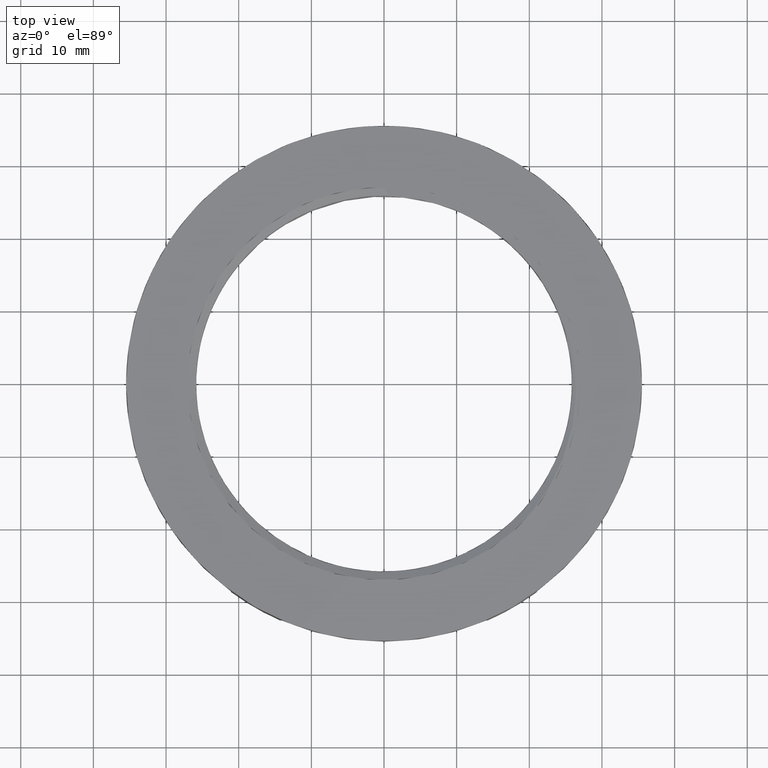
[diagram: clean part render]
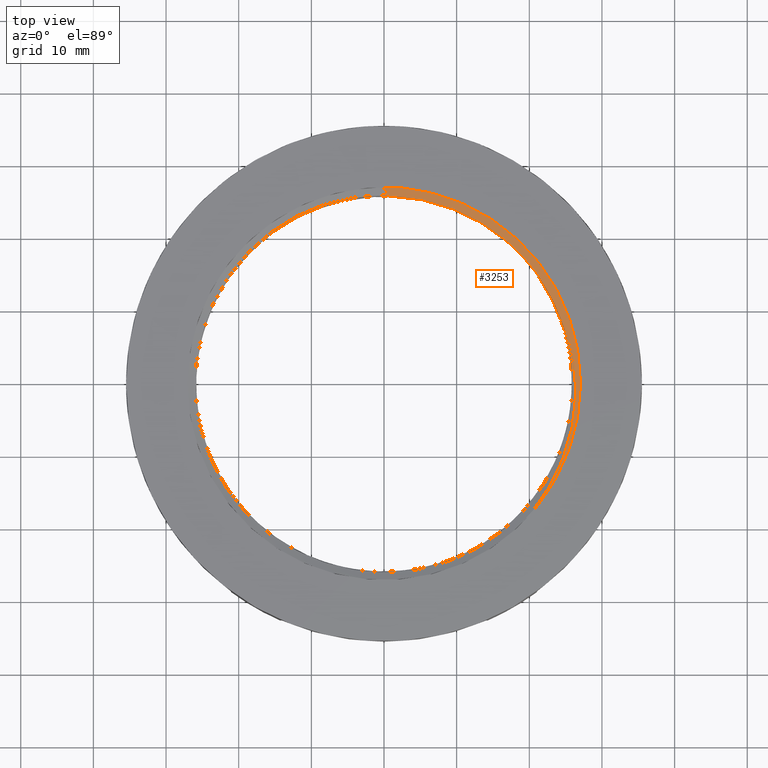
[diagram: same view with one face highlighted and labeled with its STEP entity id]
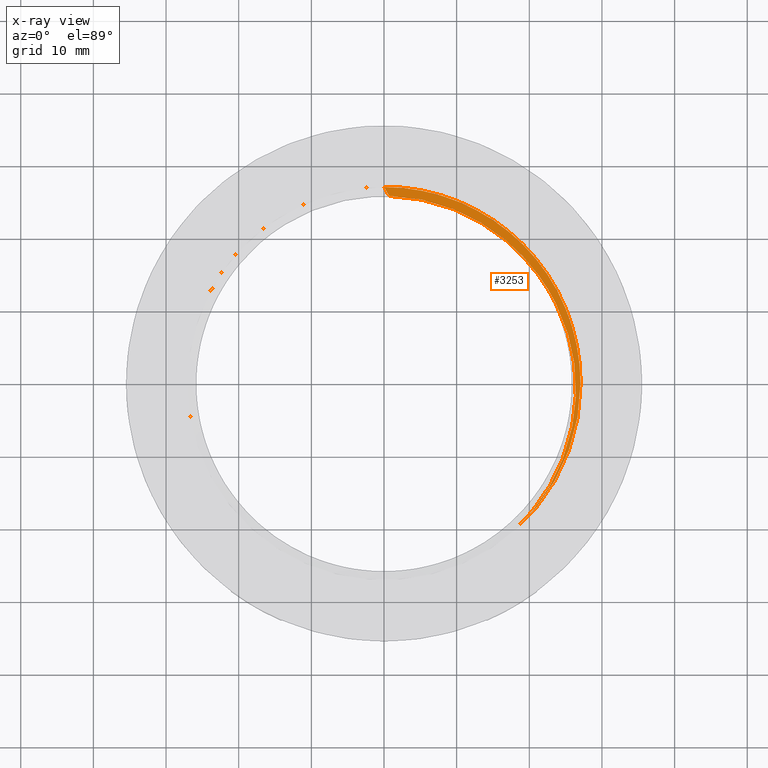
[diagram: x-ray of the same camera — body ghosted, the highlighted face saturated]
A machine part, top view. The second image highlights one B-rep face of the part: STEP entity #3253.
The next image is the same camera in x-ray: the body ghosted, the highlighted face saturated — about 0% of this face is hidden behind the body in this view.
In plain terms, the highlighted planar face has unit normal (0, 0, 1).
Its self-contained STEP definition (entity closure, byte-faithful):
#70 = VERTEX_POINT ( 'NONE', #138 ) ;
#71 = VERTEX_POINT ( 'NONE', #140 ) ;
#77 = VERTEX_POINT ( 'NONE', #145 ) ;
#88 = VERTEX_POINT ( 'NONE', #152 ) ;
#93 = VERTEX_POINT ( 'NONE', #165 ) ;
#113 = VERTEX_POINT ( 'NONE', #197 ) ;
#128 = VERTEX_POINT ( 'NONE', #220 ) ;
#138 = CARTESIAN_POINT ( 'NONE',  ( 27.05000000000000100, 3.312669591693590400E-015, 7.339314339320099000 ) ) ;
#140 = CARTESIAN_POINT ( 'NONE',  ( 17.58189886632644100, -20.55673447447987100, 7.339314339320099000 ) ) ;
#141 = VERTEX_POINT ( 'NONE', #231 ) ;
#145 = CARTESIAN_POINT ( 'NONE',  ( -27.04940074039738100, -0.001345912833219031600, 7.339314339320105200 ) ) ;
#152 = CARTESIAN_POINT ( 'NONE',  ( -27.05000000000000100, 0.0000000000000000000, 7.339314339320099000 ) ) ;
#165 = CARTESIAN_POINT ( 'NONE',  ( 0.0005992596047327636400, 27.04865408716665700, 7.339314339320103500 ) ) ;
#197 = CARTESIAN_POINT ( 'NONE',  ( -24.71096444262963800, -11.00321481727471700, 7.339314339320102600 ) ) ;
#220 = CARTESIAN_POINT ( 'NONE',  ( 21.24064821681470500, 14.92586694441305200, 7.339314339320103500 ) ) ;
#231 = CARTESIAN_POINT ( 'NONE',  ( 0.7048254123908943600, 25.82889861052227000, 7.339314339320170100 ) ) ;
#243 = DIRECTION ( 'NONE',  ( 0.0000000000000000000, 0.0000000000000000000, 1.000000000000000000 ) ) ;
#245 = FACE_OUTER_BOUND ( 'NONE', #433, .T. ) ;
#257 = CARTESIAN_POINT ( 'NONE',  ( 36.91427601606271500, -0.001345912833226351500, 7.339314339320101700 ) ) ;
#264 = PLANE ( 'NONE',  #3426 ) ;
#275 = DIRECTION ( 'NONE',  ( 1.000000000000000000, 0.0000000000000000000, -0.0000000000000000000 ) ) ;
#433 = EDGE_LOOP ( 'NONE', ( #572, #556, #537, #577, #554, #533, #548, #570 ) ) ;
#533 = ORIENTED_EDGE ( 'NONE', *, *, #3338, .T. ) ;
#537 = ORIENTED_EDGE ( 'NONE', *, *, #3309, .T. ) ;
#548 = ORIENTED_EDGE ( 'NONE', *, *, #3385, .F. ) ;
#554 = ORIENTED_EDGE ( 'NONE', *, *, #3404, .T. ) ;
#556 = ORIENTED_EDGE ( 'NONE', *, *, #3402, .T. ) ;
#570 = ORIENTED_EDGE ( 'NONE', *, *, #3355, .F. ) ;
#572 = ORIENTED_EDGE ( 'NONE', *, *, #3316, .F. ) ;
#577 = ORIENTED_EDGE ( 'NONE', *, *, #3395, .T. ) ;
#613 = CARTESIAN_POINT ( 'NONE',  ( 7.658005278053774800, 24.69914636106021200, 7.339314339320101700 ) ) ;
#614 = CARTESIAN_POINT ( 'NONE',  ( 8.612917528988195000, 24.38384792541401000, 7.339314339316887400 ) ) ;
#618 = CARTESIAN_POINT ( 'NONE',  ( 1.715559993706330800, 25.80024189559440000, 7.339314339320104400 ) ) ;
#619 = CARTESIAN_POINT ( 'NONE',  ( 4.718629891902616600, 25.42216643460114900, 7.339314339320107000 ) ) ;
#624 = CARTESIAN_POINT ( 'NONE',  ( 0.7048254123908943600, 25.82889861052227000, 7.339314339320170100 ) ) ;
#625 = CARTESIAN_POINT ( 'NONE',  ( 2.724797867595871700, 25.71251002706526400, 7.339314339320107900 ) ) ;
#626 = CARTESIAN_POINT ( 'NONE',  ( 5.705304193907944700, 25.21967737654444300, 7.339314339320101700 ) ) ;
#627 = CARTESIAN_POINT ( 'NONE',  ( 15.65639073434913300, 20.62024327719247200, 7.339314339320101700 ) ) ;
#628 = CARTESIAN_POINT ( 'NONE',  ( 10.47077933124207900, 23.65063197254086400, 7.339314339316887400 ) ) ;
#629 = CARTESIAN_POINT ( 'NONE',  ( 18.65977934645099600, 17.98920123878793100, 7.339314339316386400 ) ) ;
#631 = CARTESIAN_POINT ( 'NONE',  ( 19.99592988376791100, 16.50431260213897400, 7.339314339320099000 ) ) ;
#632 = CARTESIAN_POINT ( 'NONE',  ( 11.37551936248334900, 23.23222582585777100, 7.339314339320101700 ) ) ;
#633 = CARTESIAN_POINT ( 'NONE',  ( 21.24064821681470500, 14.92586694441305200, 7.339314339320103500 ) ) ;
#635 = CARTESIAN_POINT ( 'NONE',  ( 16.44673651751005700, 20.00286441761565100, 7.339314339320102600 ) ) ;
#636 = CARTESIAN_POINT ( 'NONE',  ( 13.13677473286843200, 22.29215346691761100, 7.339314339320104400 ) ) ;
#638 = CARTESIAN_POINT ( 'NONE',  ( 20.63118037405383000, 15.72828068186878700, 7.339314339320098100 ) ) ;
#641 = CARTESIAN_POINT ( 'NONE',  ( 20.93909902807708800, 15.33033255661503200, 7.339314339320099900 ) ) ;
#642 = CARTESIAN_POINT ( 'NONE',  ( 19.66909693238881500, 16.88290687575491200, 7.339314339316387300 ) ) ;
#643 = CARTESIAN_POINT ( 'NONE',  ( 17.94851634555143600, 18.68745417391390300, 7.339314339320100800 ) ) ;
#651 = CARTESIAN_POINT ( 'NONE',  ( 13.99329300105841000, 21.77049352640959200, 7.339314339320102600 ) ) ;
#806 = CARTESIAN_POINT ( 'NONE',  ( 0.0000000000000000000, 0.0000000000000000000, 7.339314339320099000 ) ) ;
#807 = DIRECTION ( 'NONE',  ( -0.0000000000000000000, -0.0000000000000000000, -1.000000000000000000 ) ) ;
#808 = DIRECTION ( 'NONE',  ( 1.000000000000000000, 0.0000000000000000000, 0.0000000000000000000 ) ) ;
#993 = DIRECTION ( 'NONE',  ( 0.5000000000000036600, -0.8660254037844364900, 0.0000000000000000000 ) ) ;
#1005 = LINE ( 'NONE', #1007, #3529 ) ;
#1007 = CARTESIAN_POINT ( 'NONE',  ( 0.0005992596047460844700, 27.04865408716663900, 7.339314339320101700 ) ) ;
#1264 = DIRECTION ( 'NONE',  ( -0.0000000000000000000, -0.0000000000000000000, -1.000000000000000000 ) ) ;
#1305 = DIRECTION ( 'NONE',  ( -1.000000000000000000, 0.0000000000000000000, 0.0000000000000000000 ) ) ;
#1316 = CARTESIAN_POINT ( 'NONE',  ( 0.0005992596025210209100, -0.001345912833219031600, 7.339314339320105200 ) ) ;
#1791 = CARTESIAN_POINT ( 'NONE',  ( 21.24064821681470500, 14.92586694441305200, 7.339314339320103500 ) ) ;
#1792 = CARTESIAN_POINT ( 'NONE',  ( 21.84898082405055000, -15.67264414247717900, 7.339314339320102600 ) ) ;
#1797 = CARTESIAN_POINT ( 'NONE',  ( 21.73253434052236300, 14.26610386233695700, 7.339314339320103500 ) ) ;
#1798 = CARTESIAN_POINT ( 'NONE',  ( 26.47064910752203200, -0.2782760420562380200, 7.339314339320102600 ) ) ;
#1799 = CARTESIAN_POINT ( 'NONE',  ( 23.43960741693578600, 11.45820504004865000, 7.339314339320101700 ) ) ;
#1801 = CARTESIAN_POINT ( 'NONE',  ( 26.06191138616506100, -5.158228272333806400, 7.339314339320101700 ) ) ;
#1802 = CARTESIAN_POINT ( 'NONE',  ( 25.74058339399766000, -6.759354733438062400, 7.339314339320099000 ) ) ;
#1803 = CARTESIAN_POINT ( 'NONE',  ( 24.24648075416320100, -11.39213885907597200, 7.339314339320103500 ) ) ;
#1804 = CARTESIAN_POINT ( 'NONE',  ( 21.38480871891932400, -16.33675105249497900, 7.339314339320099900 ) ) ;
#1805 = CARTESIAN_POINT ( 'NONE',  ( 25.07810146543148000, 7.740258897266505400, 7.339314339320102600 ) ) ;
#1806 = CARTESIAN_POINT ( 'NONE',  ( 26.44663587149332100, -1.901925669504091100, 7.339314339320102600 ) ) ;
#1807 = CARTESIAN_POINT ( 'NONE',  ( 25.71111029268690700, 5.378569790266905000, 7.339314339320098100 ) ) ;
#1808 = CARTESIAN_POINT ( 'NONE',  ( 26.17934812352365300, 2.961790829057296300, 7.339314339320100800 ) ) ;
#1809 = CARTESIAN_POINT ( 'NONE',  ( 26.18700554453757000, -4.342166116871259100, 7.339314339320100800 ) ) ;
#1810 = CARTESIAN_POINT ( 'NONE',  ( 22.71847341767218600, -14.29885821267210800, 7.339314339320102600 ) ) ;
#1811 = CARTESIAN_POINT ( 'NONE',  ( 25.61307111593020400, 5.774975297803462300, 7.339314339320100800 ) ) ;
#1812 = CARTESIAN_POINT ( 'NONE',  ( 18.80255131559013600, -19.45487132949128700, 7.339314339320103500 ) ) ;
#1813 = CARTESIAN_POINT ( 'NONE',  ( 19.90518668646669600, -18.26162093708440200, 7.339314339320101700 ) ) ;
#1815 = CARTESIAN_POINT ( 'NONE',  ( 24.84933281948445900, -9.881608476026118000, 7.339314339320103500 ) ) ;
#1816 = CARTESIAN_POINT ( 'NONE',  ( 23.12446879885931500, -13.58786641668848800, 7.339314339320101700 ) ) ;
#1819 = CARTESIAN_POINT ( 'NONE',  ( 25.54412587386967500, -7.548399400544288300, 7.339314339320102600 ) ) ;
#1820 = CARTESIAN_POINT ( 'NONE',  ( 23.04635006882223200, 12.17994576952204400, 7.339314339320100800 ) ) ;
#1823 = CARTESIAN_POINT ( 'NONE',  ( 22.19201785773553200, 13.58494450841270900, 7.339314339320102600 ) ) ;
#1830 = CARTESIAN_POINT ( 'NONE',  ( 25.88898336637109700, 4.578950590332674200, 7.339314339320096400 ) ) ;
#1835 = CARTESIAN_POINT ( 'NONE',  ( 24.50800798714460200, 9.259338339563893100, 7.339314339320101700 ) ) ;
#1836 = CARTESIAN_POINT ( 'NONE',  ( 26.28058631908157100, 2.152379701401147600, 7.339314339320102600 ) ) ;
#1837 = CARTESIAN_POINT ( 'NONE',  ( 25.96898277930080200, 4.174660487120549500, 7.339314339320100800 ) ) ;
#1839 = CARTESIAN_POINT ( 'NONE',  ( 17.58189886632644100, -20.55673447447987100, 7.339314339320099000 ) ) ;
#2023 = CARTESIAN_POINT ( 'NONE',  ( 0.0000000000000000000, 0.0000000000000000000, 7.339314339320099000 ) ) ;
#2029 = DIRECTION ( 'NONE',  ( -0.0000000000000000000, -0.0000000000000000000, -1.000000000000000000 ) ) ;
#2030 = DIRECTION ( 'NONE',  ( 1.000000000000000000, 0.0000000000000000000, 0.0000000000000000000 ) ) ;
#2235 = DIRECTION ( 'NONE',  ( -1.000000000000000000, 0.0000000000000000000, 0.0000000000000000000 ) ) ;
#2244 = CARTESIAN_POINT ( 'NONE',  ( 0.0005992596025210209100, -0.001345912833219031600, 7.339314339320105200 ) ) ;
#2246 = CARTESIAN_POINT ( 'NONE',  ( 0.0000000000000000000, 0.0000000000000000000, 7.339314339320099000 ) ) ;
#2248 = DIRECTION ( 'NONE',  ( -0.0000000000000000000, -0.0000000000000000000, -1.000000000000000000 ) ) ;
#2254 = DIRECTION ( 'NONE',  ( 1.000000000000000000, 3.552713678800500900E-015, 0.0000000000000000000 ) ) ;
#2255 = DIRECTION ( 'NONE',  ( -0.0000000000000000000, -0.0000000000000000000, -1.000000000000000000 ) ) ;
#3228 = B_SPLINE_CURVE_WITH_KNOTS ( 'NONE', 3,
 ( #1791, #1797, #1823, #1820, #1799, #1835, #1805, #1811, #1807, #1830, #1837, #1808, #1836, #1798, #1806, #1809, #1801, #1802, #1819, #1815, #1803, #1816, #1810, #1792, #1804, #1813, #1812, #1839 ),
 .UNSPECIFIED., .F., .F.,
 ( 4, 2, 2, 2, 2, 2, 2, 2, 2, 2, 2, 2, 2, 4 ),
 ( 1.734723475976807100E-018, 0.002464820327257470200, 0.004929640654514938700, 0.009859281309029880800, 0.01109169147265861400, 0.01232410163628734800, 0.01478892196354481900, 0.01971856261805975800, 0.02218338294531722200, 0.02464820327257469200, 0.02957784392708962700, 0.03204266425434709000, 0.03450748458160456100, 0.03943712523611948900 ),
 .UNSPECIFIED. ) ;
#3245 = B_SPLINE_CURVE_WITH_KNOTS ( 'NONE', 3,
 ( #624, #618, #625, #619, #626, #613, #614, #628, #632, #636, #651, #627, #635, #643, #629, #642, #631, #638, #641, #633 ),
 .UNSPECIFIED., .F., .F.,
 ( 4, 2, 2, 2, 2, 2, 2, 2, 2, 4 ),
 ( 4.987329993433323500E-018, 0.003033373060131093000, 0.006066746120262180900, 0.009100119180393268300, 0.01213349224052435700, 0.01516686530065544300, 0.01820023836078653700, 0.02123361142091763000, 0.02275029795098317700, 0.02426698448104872700 ),
 .UNSPECIFIED. ) ;
#3253 = ADVANCED_FACE ( 'NONE', ( #245 ), #264, .T. ) ;
#3309 = EDGE_CURVE ( 'NONE', #77, #93, #3467, .T. ) ;
#3316 = EDGE_CURVE ( 'NONE', #113, #88, #3470, .T. ) ;
#3338 = EDGE_CURVE ( 'NONE', #128, #71, #3228, .T. ) ;
#3355 = EDGE_CURVE ( 'NONE', #88, #70, #3534, .T. ) ;
#3385 = EDGE_CURVE ( 'NONE', #70, #71, #3548, .T. ) ;
#3395 = EDGE_CURVE ( 'NONE', #93, #141, #1005, .T. ) ;
#3402 = EDGE_CURVE ( 'NONE', #113, #77, #3562, .T. ) ;
#3404 = EDGE_CURVE ( 'NONE', #141, #128, #3245, .T. ) ;
#3426 = AXIS2_PLACEMENT_3D ( 'NONE', #257, #243, #275 ) ;
#3463 = AXIS2_PLACEMENT_3D ( 'NONE', #2246, #2248, #2254 ) ;
#3467 = CIRCLE ( 'NONE', #3495, 27.04999999999990100 ) ;
#3470 = CIRCLE ( 'NONE', #3463, 27.05000000000000100 ) ;
#3495 = AXIS2_PLACEMENT_3D ( 'NONE', #2244, #2255, #2235 ) ;
#3522 = AXIS2_PLACEMENT_3D ( 'NONE', #2023, #2029, #2030 ) ;
#3529 = VECTOR ( 'NONE', #993, 1000.000000000000100 ) ;
#3534 = CIRCLE ( 'NONE', #3522, 27.05000000000000100 ) ;
#3548 = CIRCLE ( 'NONE', #3552, 27.05000000000000100 ) ;
#3552 = AXIS2_PLACEMENT_3D ( 'NONE', #806, #807, #808 ) ;
#3562 = CIRCLE ( 'NONE', #3569, 27.04999999999990100 ) ;
#3569 = AXIS2_PLACEMENT_3D ( 'NONE', #1316, #1264, #1305 ) ;